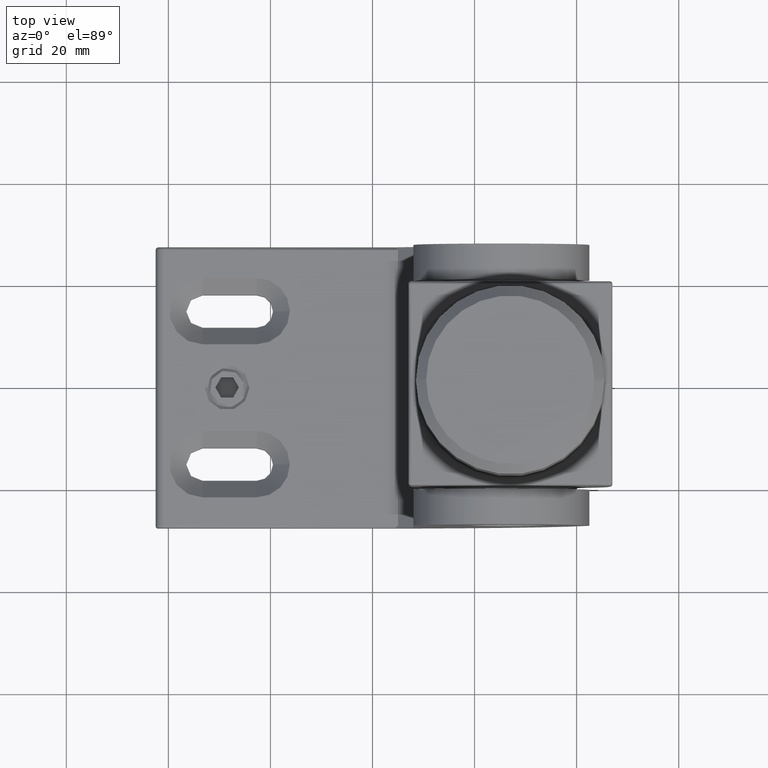
[diagram: clean part render]
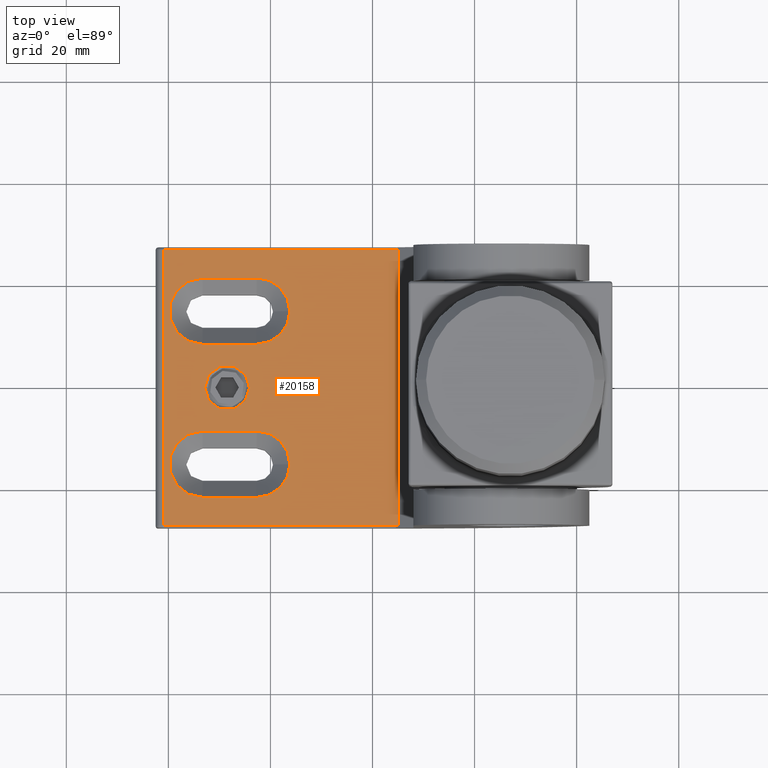
[diagram: same view with one face highlighted and labeled with its STEP entity id]
A machine part, top view. The second image highlights one B-rep face of the part: STEP entity #20158.
In plain terms, the highlighted planar face has unit normal (0, 0, -1).
Its self-contained STEP definition (entity closure, byte-faithful):
#122 = VERTEX_POINT ( 'NONE', #18737 ) ;
#328 = EDGE_CURVE ( 'NONE', #22943, #16950, #7508, .T. ) ;
#1038 = CARTESIAN_POINT ( 'NONE',  ( -16.20000000000001350, 14.99999999999999645, -17.49999999999999645 ) ) ;
#1302 = CIRCLE ( 'NONE', #16404, 6.499999999999999112 ) ;
#1331 = CARTESIAN_POINT ( 'NONE',  ( -22.70000000000001350, -15.00000000000000355, -17.49999999999999645 ) ) ;
#1614 = CARTESIAN_POINT ( 'NONE',  ( -33.30000000000000426, -15.00000000000000355, -17.49999999999999645 ) ) ;
#1801 = VERTEX_POINT ( 'NONE', #4444 ) ;
#1810 = ORIENTED_EDGE ( 'NONE', *, *, #23433, .F. ) ;
#2014 = CIRCLE ( 'NONE', #17687, 6.500000000000002665 ) ;
#2148 = VERTEX_POINT ( 'NONE', #15673 ) ;
#2680 = AXIS2_PLACEMENT_3D ( 'NONE', #3222, #22641, #7267 ) ;
#2695 = ORIENTED_EDGE ( 'NONE', *, *, #23889, .T. ) ;
#2891 = VERTEX_POINT ( 'NONE', #1038 ) ;
#3181 = CIRCLE ( 'NONE', #11873, 6.499999999999999112 ) ;
#3222 = CARTESIAN_POINT ( 'NONE',  ( -28.50000000000000355, 0.000000000000000000, -17.49999999999999645 ) ) ;
#3277 = CARTESIAN_POINT ( 'NONE',  ( -33.30000000000001137, 8.499999999999996447, -17.49999999999999645 ) ) ;
#4066 = ORIENTED_EDGE ( 'NONE', *, *, #24252, .F. ) ;
#4156 = VERTEX_POINT ( 'NONE', #12831 ) ;
#4364 = CARTESIAN_POINT ( 'NONE',  ( -28.50000000000000355, 0.000000000000000000, -17.49999999999999645 ) ) ;
#4390 = ORIENTED_EDGE ( 'NONE', *, *, #20897, .F. ) ;
#4444 = CARTESIAN_POINT ( 'NONE',  ( -22.70000000000001350, -8.500000000000000000, -17.49999999999999645 ) ) ;
#4504 = VECTOR ( 'NONE', #18170, 1000.000000000000000 ) ;
#4687 = ORIENTED_EDGE ( 'NONE', *, *, #14420, .F. ) ;
#4944 = DIRECTION ( 'NONE',  ( -0.000000000000000000, -0.000000000000000000, 1.000000000000000000 ) ) ;
#5082 = FACE_BOUND ( 'NONE', #8687, .T. ) ;
#5286 = LINE ( 'NONE', #20939, #24628 ) ;
#5584 = VECTOR ( 'NONE', #20889, 1000.000000000000000 ) ;
#5735 = CARTESIAN_POINT ( 'NONE',  ( -32.90000000000000568, 5.388445916248355985E-16, -17.49999999999999645 ) ) ;
#5750 = LINE ( 'NONE', #14732, #16275 ) ;
#5995 = CIRCLE ( 'NONE', #8143, 6.500000000000002665 ) ;
#6063 = ORIENTED_EDGE ( 'NONE', *, *, #13659, .T. ) ;
#6136 = DIRECTION ( 'NONE',  ( 1.000000000000000000, -0.000000000000000000, -0.000000000000000000 ) ) ;
#6213 = CARTESIAN_POINT ( 'NONE',  ( -22.70000000000001350, 14.99999999999999645, -17.49999999999999645 ) ) ;
#6527 = CIRCLE ( 'NONE', #2680, 4.400000000000001243 ) ;
#6531 = ORIENTED_EDGE ( 'NONE', *, *, #22310, .T. ) ;
#6734 = LINE ( 'NONE', #15409, #19705 ) ;
#6918 = CARTESIAN_POINT ( 'NONE',  ( -22.70000000000001350, 14.99999999999999645, -17.49999999999999645 ) ) ;
#7013 = DIRECTION ( 'NONE',  ( 1.000000000000000000, 0.000000000000000000, 0.000000000000000000 ) ) ;
#7267 = DIRECTION ( 'NONE',  ( -1.000000000000000000, 0.000000000000000000, 0.000000000000000000 ) ) ;
#7296 = DIRECTION ( 'NONE',  ( 1.000000000000000000, 0.000000000000000000, 0.000000000000000000 ) ) ;
#7379 = EDGE_CURVE ( 'NONE', #2148, #22447, #14077, .T. ) ;
#7508 = CIRCLE ( 'NONE', #17386, 4.400000000000001243 ) ;
#7659 = DIRECTION ( 'NONE',  ( -1.000000000000000000, -0.000000000000000000, -0.000000000000000000 ) ) ;
#7686 = VERTEX_POINT ( 'NONE', #21263 ) ;
#7705 = LINE ( 'NONE', #11101, #5584 ) ;
#7730 = DIRECTION ( 'NONE',  ( 1.000000000000000000, -0.000000000000000000, 0.000000000000000000 ) ) ;
#7991 = VERTEX_POINT ( 'NONE', #3277 ) ;
#7998 = DIRECTION ( 'NONE',  ( 0.000000000000000000, 0.000000000000000000, -1.000000000000000000 ) ) ;
#8143 = AXIS2_PLACEMENT_3D ( 'NONE', #1614, #12934, #7296 ) ;
#8465 = EDGE_CURVE ( 'NONE', #2891, #4156, #21306, .T. ) ;
#8687 = EDGE_LOOP ( 'NONE', ( #21808, #9222 ) ) ;
#9222 = ORIENTED_EDGE ( 'NONE', *, *, #328, .T. ) ;
#10065 = EDGE_CURVE ( 'NONE', #122, #7686, #23392, .T. ) ;
#10336 = EDGE_CURVE ( 'NONE', #22742, #1801, #6734, .T. ) ;
#10563 = DIRECTION ( 'NONE',  ( 0.000000000000000000, -1.000000000000000000, 0.000000000000000000 ) ) ;
#10688 = ORIENTED_EDGE ( 'NONE', *, *, #20433, .F. ) ;
#10732 = DIRECTION ( 'NONE',  ( -0.000000000000000000, -0.000000000000000000, 1.000000000000000000 ) ) ;
#11101 = CARTESIAN_POINT ( 'NONE',  ( -33.30000000000001137, -21.50000000000004619, -17.49999999999999645 ) ) ;
#11321 = ORIENTED_EDGE ( 'NONE', *, *, #7379, .F. ) ;
#11397 = CARTESIAN_POINT ( 'NONE',  ( -16.20000000000000995, -15.00000000000000355, -17.49999999999999645 ) ) ;
#11649 = VECTOR ( 'NONE', #10563, 1000.000000000000000 ) ;
#11685 = FACE_BOUND ( 'NONE', #15818, .T. ) ;
#11733 = AXIS2_PLACEMENT_3D ( 'NONE', #1331, #10732, #7013 ) ;
#11873 = AXIS2_PLACEMENT_3D ( 'NONE', #12863, #4944, #20300 ) ;
#12187 = DIRECTION ( 'NONE',  ( 0.000000000000000000, 0.000000000000000000, -1.000000000000000000 ) ) ;
#12411 = CARTESIAN_POINT ( 'NONE',  ( 4.999999999999999112, 27.50000000000000000, -17.49999999999999645 ) ) ;
#12559 = DIRECTION ( 'NONE',  ( -0.000000000000000000, -0.000000000000000000, 1.000000000000000000 ) ) ;
#12699 = ORIENTED_EDGE ( 'NONE', *, *, #10065, .T. ) ;
#12734 = DIRECTION ( 'NONE',  ( 1.000000000000000000, 0.000000000000000000, 0.000000000000000000 ) ) ;
#12789 = DIRECTION ( 'NONE',  ( 1.000000000000000000, -0.000000000000000000, -0.000000000000000000 ) ) ;
#12831 = CARTESIAN_POINT ( 'NONE',  ( -22.70000000000001350, 21.49999999999999645, -17.49999999999999645 ) ) ;
#12863 = CARTESIAN_POINT ( 'NONE',  ( -33.30000000000001137, 14.99999999999999645, -17.49999999999999645 ) ) ;
#12934 = DIRECTION ( 'NONE',  ( -0.000000000000000000, -0.000000000000000000, 1.000000000000000000 ) ) ;
#13269 = DIRECTION ( 'NONE',  ( 1.000000000000000000, -0.000000000000000000, -0.000000000000000000 ) ) ;
#13280 = CARTESIAN_POINT ( 'NONE',  ( -41.00000000000000000, -27.00000000000000000, -17.49999999999999645 ) ) ;
#13429 = ORIENTED_EDGE ( 'NONE', *, *, #23200, .F. ) ;
#13543 = FACE_BOUND ( 'NONE', #13793, .T. ) ;
#13659 = EDGE_CURVE ( 'NONE', #18839, #21723, #5750, .T. ) ;
#13698 = AXIS2_PLACEMENT_3D ( 'NONE', #6213, #19706, #13886 ) ;
#13793 = EDGE_LOOP ( 'NONE', ( #13429, #2695, #16790, #4066, #17260 ) ) ;
#13886 = DIRECTION ( 'NONE',  ( 1.000000000000000000, 0.000000000000000000, 0.000000000000000000 ) ) ;
#13901 = DIRECTION ( 'NONE',  ( -1.000000000000000000, 0.000000000000000000, 0.000000000000000000 ) ) ;
#13926 = VERTEX_POINT ( 'NONE', #20541 ) ;
#13977 = EDGE_LOOP ( 'NONE', ( #6531, #6063, #4687, #12699 ) ) ;
#14077 = CIRCLE ( 'NONE', #11733, 6.500000000000002665 ) ;
#14420 = EDGE_CURVE ( 'NONE', #122, #21723, #18405, .T. ) ;
#14597 = CARTESIAN_POINT ( 'NONE',  ( -22.70000000000001350, -15.00000000000000355, -17.49999999999999645 ) ) ;
#14617 = CARTESIAN_POINT ( 'NONE',  ( -24.10000000000000497, 0.000000000000000000, -17.49999999999999645 ) ) ;
#14696 = CARTESIAN_POINT ( 'NONE',  ( -33.30000000000000426, -21.50000000000000355, -17.49999999999999645 ) ) ;
#14732 = CARTESIAN_POINT ( 'NONE',  ( -42.50000000000000000, -27.00000000000000000, -17.49999999999999645 ) ) ;
#15036 = ORIENTED_EDGE ( 'NONE', *, *, #10336, .T. ) ;
#15074 = CARTESIAN_POINT ( 'NONE',  ( -33.30000000000001137, 8.499999999999966249, -17.49999999999999645 ) ) ;
#15088 = EDGE_CURVE ( 'NONE', #7991, #19953, #17482, .T. ) ;
#15409 = CARTESIAN_POINT ( 'NONE',  ( -33.30000000000001137, -8.500000000000000000, -17.49999999999999645 ) ) ;
#15673 = CARTESIAN_POINT ( 'NONE',  ( -22.70000000000001350, -21.50000000000004619, -17.49999999999999645 ) ) ;
#15818 = EDGE_LOOP ( 'NONE', ( #11321, #1810, #10688, #15036, #4390 ) ) ;
#16230 = CARTESIAN_POINT ( 'NONE',  ( -42.50000000000000000, 27.50000000000000000, -17.49999999999999645 ) ) ;
#16275 = VECTOR ( 'NONE', #7730, 1000.000000000000000 ) ;
#16348 = DIRECTION ( 'NONE',  ( 1.000000000000000000, 0.000000000000000000, 0.000000000000000000 ) ) ;
#16404 = AXIS2_PLACEMENT_3D ( 'NONE', #6918, #12559, #16348 ) ;
#16790 = ORIENTED_EDGE ( 'NONE', *, *, #8465, .F. ) ;
#16950 = VERTEX_POINT ( 'NONE', #14617 ) ;
#17050 = VERTEX_POINT ( 'NONE', #14696 ) ;
#17260 = ORIENTED_EDGE ( 'NONE', *, *, #15088, .F. ) ;
#17386 = AXIS2_PLACEMENT_3D ( 'NONE', #4364, #7998, #13901 ) ;
#17482 = LINE ( 'NONE', #15074, #19593 ) ;
#17687 = AXIS2_PLACEMENT_3D ( 'NONE', #14597, #22381, #12734 ) ;
#18043 = FACE_OUTER_BOUND ( 'NONE', #13977, .T. ) ;
#18170 = DIRECTION ( 'NONE',  ( -0.000000000000000000, -1.000000000000000000, -0.000000000000000000 ) ) ;
#18405 = LINE ( 'NONE', #12411, #4504 ) ;
#18469 = CARTESIAN_POINT ( 'NONE',  ( -33.30000000000001137, -8.500000000000000000, -17.49999999999999645 ) ) ;
#18737 = CARTESIAN_POINT ( 'NONE',  ( 4.999999999999999112, 27.00000000000000000, -17.49999999999999645 ) ) ;
#18839 = VERTEX_POINT ( 'NONE', #13280 ) ;
#19473 = AXIS2_PLACEMENT_3D ( 'NONE', #16230, #12187, #21644 ) ;
#19593 = VECTOR ( 'NONE', #12789, 1000.000000000000000 ) ;
#19705 = VECTOR ( 'NONE', #6136, 1000.000000000000000 ) ;
#19706 = DIRECTION ( 'NONE',  ( -0.000000000000000000, -0.000000000000000000, 1.000000000000000000 ) ) ;
#19708 = PLANE ( 'NONE',  #19473 ) ;
#19953 = VERTEX_POINT ( 'NONE', #23122 ) ;
#20158 = ADVANCED_FACE ( 'NONE', ( #5082, #13543, #18043, #11685 ), #19708, .F. ) ;
#20272 = CARTESIAN_POINT ( 'NONE',  ( -41.00000000000000000, 27.50000000000000000, -17.49999999999999645 ) ) ;
#20300 = DIRECTION ( 'NONE',  ( 1.000000000000000000, 0.000000000000000000, 0.000000000000000000 ) ) ;
#20433 = EDGE_CURVE ( 'NONE', #22742, #17050, #5995, .T. ) ;
#20541 = CARTESIAN_POINT ( 'NONE',  ( -33.30000000000001137, 21.49999999999999645, -17.49999999999999645 ) ) ;
#20889 = DIRECTION ( 'NONE',  ( 1.000000000000000000, -0.000000000000000000, -0.000000000000000000 ) ) ;
#20897 = EDGE_CURVE ( 'NONE', #22447, #1801, #2014, .T. ) ;
#20939 = CARTESIAN_POINT ( 'NONE',  ( -33.30000000000001137, 21.49999999999999645, -17.49999999999999645 ) ) ;
#21263 = CARTESIAN_POINT ( 'NONE',  ( -41.00000000000000000, 27.00000000000000000, -17.49999999999999645 ) ) ;
#21306 = CIRCLE ( 'NONE', #13698, 6.499999999999999112 ) ;
#21644 = DIRECTION ( 'NONE',  ( -1.000000000000000000, 0.000000000000000000, -0.000000000000000000 ) ) ;
#21723 = VERTEX_POINT ( 'NONE', #23548 ) ;
#21808 = ORIENTED_EDGE ( 'NONE', *, *, #22352, .T. ) ;
#22310 = EDGE_CURVE ( 'NONE', #7686, #18839, #22533, .T. ) ;
#22352 = EDGE_CURVE ( 'NONE', #16950, #22943, #6527, .T. ) ;
#22381 = DIRECTION ( 'NONE',  ( -0.000000000000000000, -0.000000000000000000, 1.000000000000000000 ) ) ;
#22447 = VERTEX_POINT ( 'NONE', #11397 ) ;
#22455 = VECTOR ( 'NONE', #7659, 1000.000000000000000 ) ;
#22533 = LINE ( 'NONE', #20272, #11649 ) ;
#22641 = DIRECTION ( 'NONE',  ( 0.000000000000000000, 0.000000000000000000, -1.000000000000000000 ) ) ;
#22742 = VERTEX_POINT ( 'NONE', #18469 ) ;
#22872 = CARTESIAN_POINT ( 'NONE',  ( -41.00000000000000000, 27.00000000000000000, -17.49999999999999645 ) ) ;
#22943 = VERTEX_POINT ( 'NONE', #5735 ) ;
#23122 = CARTESIAN_POINT ( 'NONE',  ( -22.70000000000001350, 8.499999999999966249, -17.49999999999999645 ) ) ;
#23200 = EDGE_CURVE ( 'NONE', #13926, #7991, #3181, .T. ) ;
#23392 = LINE ( 'NONE', #22872, #22455 ) ;
#23433 = EDGE_CURVE ( 'NONE', #17050, #2148, #7705, .T. ) ;
#23548 = CARTESIAN_POINT ( 'NONE',  ( 4.999999999999999112, -27.00000000000000000, -17.49999999999999645 ) ) ;
#23889 = EDGE_CURVE ( 'NONE', #13926, #4156, #5286, .T. ) ;
#24252 = EDGE_CURVE ( 'NONE', #19953, #2891, #1302, .T. ) ;
#24628 = VECTOR ( 'NONE', #13269, 1000.000000000000000 ) ;